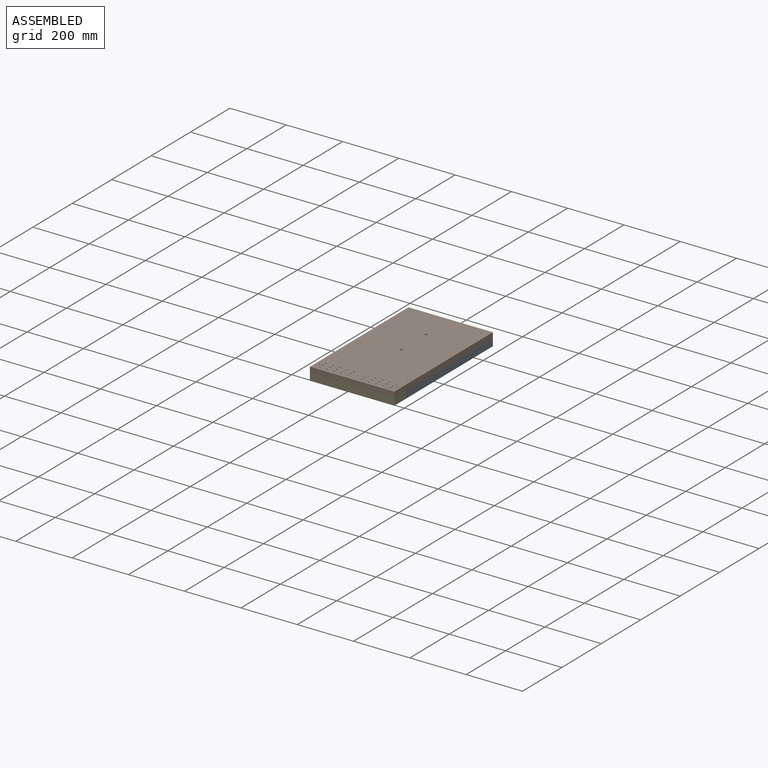
[diagram: assembled view]
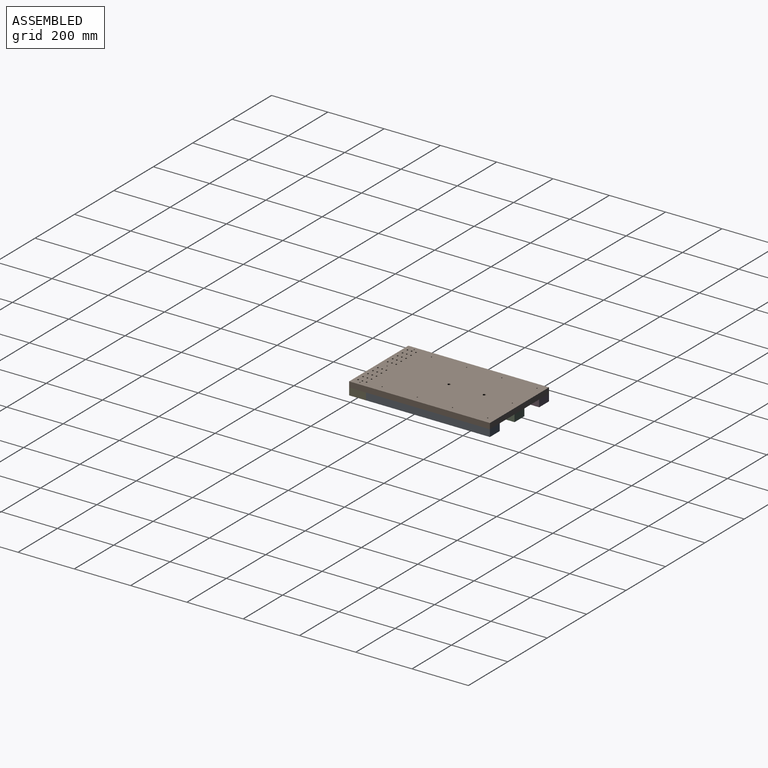
[diagram: assembled view, second angle]
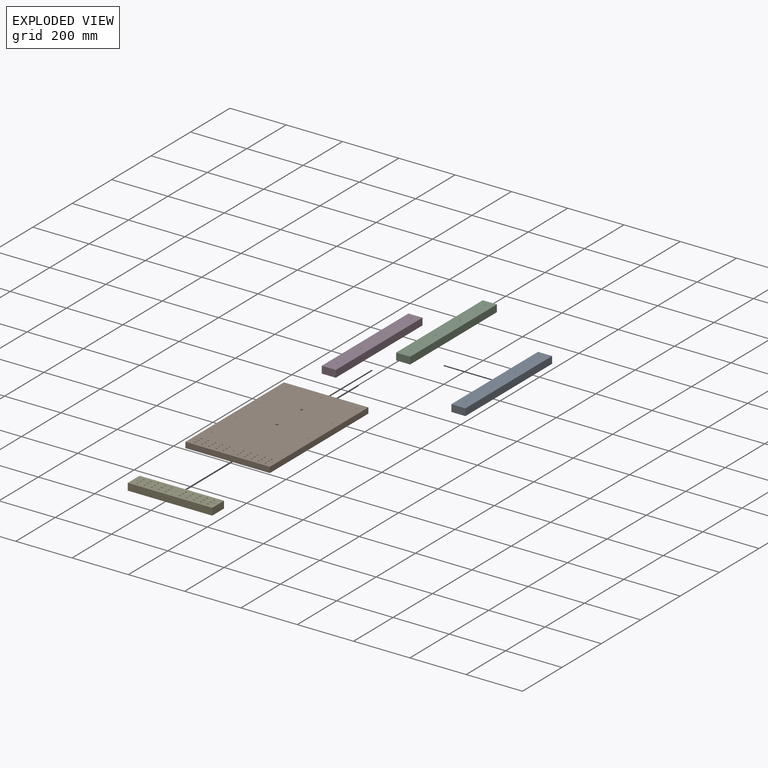
[diagram: exploded view]
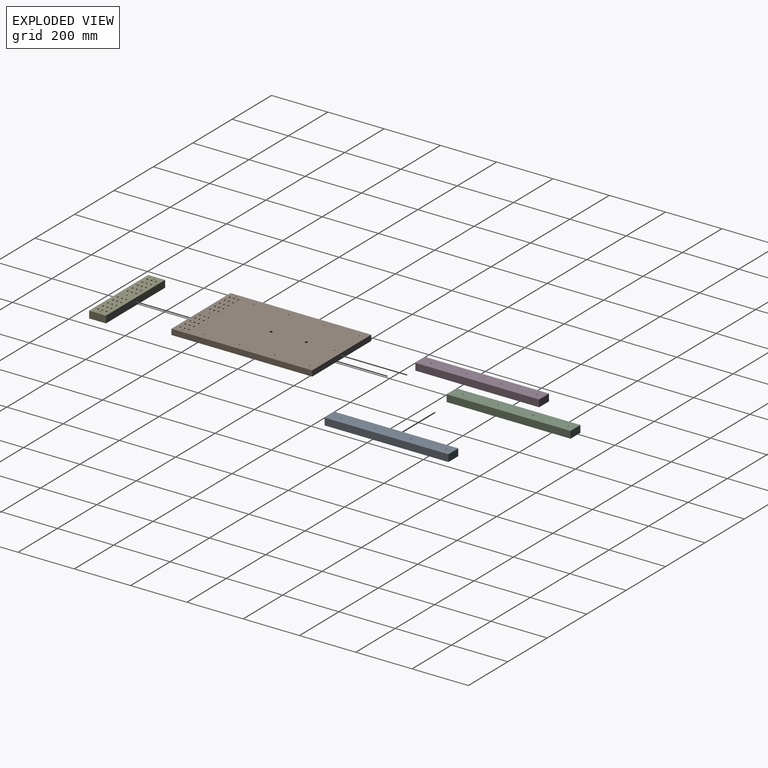
[diagram: exploded view, second angle]
ASSEMBLY  parts=5 mates=4
PART A: 10 faces, bbox 50x440x25 mm
  f0: plane 50x25mm, normal (0,1,0), area 1250mm2, adj f1,f7,f8,f9
  f1: plane 440x25mm, normal (-1,0,0), area 11000mm2, adj f0,f2,f8,f9
  f2: plane 50x25mm, normal (0,-1,0), area 1250mm2, adj f1,f7,f8,f9
  f3: cylinder r=2mm len=25mm, axis (0,0,-1), area 314.2mm2, adj f8,f9
  f4: cylinder r=2mm len=25mm, axis (0,0,-1), area 314.2mm2, adj f8,f9
  f5: cylinder r=2mm len=25mm, axis (0,0,-1), area 314.2mm2, adj f8,f9
  f6: cylinder r=2mm len=25mm, axis (0,0,-1), area 314.2mm2, adj f8,f9
  f7: plane 440x25mm, normal (1,0,0), area 11000mm2, adj f0,f2,f8,f9
  f8: plane 440x50mm, normal (0,0,1), area 21949.7mm2, adj f0,f1,f2,f3,f4,f5,f6,f7
  f9: plane 440x50mm, normal (0,0,-1), area 21949.7mm2, adj f0,f1,f2,f3,f4,f5,f6,f7
PART B: 50 faces, bbox 300x500x20 mm
  f0: plane 300x20mm, normal (0,1,0), area 6000mm2, adj f1,f47,f48,f49
  f1: plane 500x20mm, normal (-1,0,0), area 10000mm2, adj f0,f2,f48,f49
  f2: plane 300x20mm, normal (0,-1,0), area 6000mm2, adj f1,f47,f48,f49
  f3: cylinder r=3mm len=20mm, axis (0,0,-1), area 377mm2, adj f48,f49
  f4: cylinder r=3mm len=20mm, axis (0,0,-1), area 377mm2, adj f48,f49
  f5: cylinder r=3mm len=20mm, axis (0,0,-1), area 377mm2, adj f48,f49
  f6: cylinder r=3mm len=20mm, axis (0,0,-1), area 377mm2, adj f48,f49
  f7: cylinder r=3mm len=20mm, axis (0,0,-1), area 377mm2, adj f48,f49
  f8: cylinder r=3mm len=20mm, axis (0,0,-1), area 377mm2, adj f48,f49
  f9: cylinder r=3mm len=20mm, axis (0,0,-1), area 377mm2, adj f48,f49
  f10: cylinder r=3mm len=20mm, axis (0,0,-1), area 377mm2, adj f48,f49
  f11: cylinder r=3mm len=20mm, axis (0,0,-1), area 377mm2, adj f48,f49
  f12: cylinder r=3mm len=20mm, axis (0,0,-1), area 377mm2, adj f48,f49
  f13: cylinder r=3mm len=20mm, axis (0,0,-1), area 377mm2, adj f48,f49
  f14: cylinder r=3mm len=20mm, axis (0,0,-1), area 377mm2, adj f48,f49
  f15: cylinder r=3mm len=20mm, axis (0,0,-1), area 377mm2, adj f48,f49
  f16: cylinder r=3mm len=20mm, axis (0,0,-1), area 377mm2, adj f48,f49
  f17: cylinder r=3mm len=20mm, axis (0,0,-1), area 377mm2, adj f48,f49
  f18: cylinder r=3mm len=20mm, axis (0,0,-1), area 377mm2, adj f48,f49
  f19: cylinder r=3mm len=20mm, axis (0,0,-1), area 377mm2, adj f48,f49
  f20: cylinder r=3mm len=20mm, axis (0,0,-1), area 377mm2, adj f48,f49
  f21: cylinder r=3mm len=20mm, axis (0,0,-1), area 377mm2, adj f48,f49
  f22: cylinder r=3mm len=20mm, axis (0,0,-1), area 377mm2, adj f48,f49
  f23: cylinder r=3mm len=20mm, axis (0,0,-1), area 377mm2, adj f48,f49
  f24: cylinder r=3mm len=20mm, axis (0,0,-1), area 377mm2, adj f48,f49
  f25: cylinder r=3mm len=20mm, axis (0,0,-1), area 377mm2, adj f48,f49
  f26: cylinder r=3mm len=20mm, axis (0,0,-1), area 377mm2, adj f48,f49
  f27: cylinder r=3mm len=20mm, axis (0,0,-1), area 377mm2, adj f48,f49
  f28: cylinder r=3mm len=20mm, axis (0,0,-1), area 377mm2, adj f48,f49
  f29: cylinder r=3mm len=20mm, axis (0,0,-1), area 377mm2, adj f48,f49
  f30: cylinder r=3mm len=20mm, axis (0,0,-1), area 377mm2, adj f48,f49
  f31: cylinder r=3mm len=20mm, axis (0,0,-1), area 377mm2, adj f48,f49
  f32: cylinder r=3mm len=20mm, axis (0,0,-1), area 377mm2, adj f48,f49
  f33: cylinder r=5mm len=20mm, axis (0,0,-1), area 628.3mm2, adj f48,f49
  f34: cylinder r=5mm len=20mm, axis (0,0,-1), area 628.3mm2, adj f48,f49
  f35: cylinder r=2mm len=20mm, axis (0,0,-1), area 251.3mm2, adj f48,f49
  f36: cylinder r=2mm len=20mm, axis (0,0,-1), area 251.3mm2, adj f48,f49
  f37: cylinder r=2mm len=20mm, axis (0,0,-1), area 251.3mm2, adj f48,f49
  f38: cylinder r=2mm len=20mm, axis (0,0,-1), area 251.3mm2, adj f48,f49
  f39: cylinder r=2mm len=20mm, axis (0,0,-1), area 251.3mm2, adj f48,f49
  f40: cylinder r=2mm len=20mm, axis (0,0,-1), area 251.3mm2, adj f48,f49
  f41: cylinder r=2mm len=20mm, axis (0,0,-1), area 251.3mm2, adj f48,f49
  f42: cylinder r=2mm len=20mm, axis (0,0,-1), area 251.3mm2, adj f48,f49
  f43: cylinder r=2mm len=20mm, axis (0,0,-1), area 251.3mm2, adj f48,f49
  f44: cylinder r=2mm len=20mm, axis (0,0,-1), area 251.3mm2, adj f48,f49
  f45: cylinder r=2mm len=20mm, axis (0,0,-1), area 251.3mm2, adj f48,f49
  f46: cylinder r=2mm len=20mm, axis (0,0,-1), area 251.3mm2, adj f48,f49
  f47: plane 500x20mm, normal (1,0,0), area 10000mm2, adj f0,f2,f48,f49
  f48: plane 500x300mm, normal (0,0,1), area 148843.9mm2, adj f0,f1,f2,f3,f4,f5,f6,f7
  f49: plane 500x300mm, normal (0,0,-1), area 148843.9mm2, adj f0,f1,f2,f3,f4,f5,f6,f7
PART C: same geometry as A
PART D: same geometry as A
PART E: 39 faces, bbox 300x60x25 mm
  f0: plane 300x25mm, normal (0,1,0), area 7500mm2, adj f1,f36,f37,f38
  f1: plane 60x25mm, normal (-1,0,0), area 1500mm2, adj f0,f2,f37,f38
  f2: plane 300x25mm, normal (0,-1,0), area 7500mm2, adj f1,f36,f37,f38
  f3: cylinder r=3mm len=25mm, axis (0,0,-1), area 471.2mm2, adj f37,f38
  f4: cylinder r=3mm len=25mm, axis (0,0,-1), area 471.2mm2, adj f37,f38
  f5: cylinder r=3mm len=25mm, axis (0,0,-1), area 471.2mm2, adj f37,f38
  f6: cylinder r=3mm len=25mm, axis (0,0,-1), area 471.2mm2, adj f37,f38
  f7: cylinder r=3mm len=25mm, axis (0,0,-1), area 471.2mm2, adj f37,f38
  f8: cylinder r=3mm len=25mm, axis (0,0,-1), area 471.2mm2, adj f37,f38
  f9: cylinder r=3mm len=25mm, axis (0,0,-1), area 471.2mm2, adj f37,f38
  f10: cylinder r=3mm len=25mm, axis (0,0,-1), area 471.2mm2, adj f37,f38
  f11: cylinder r=3mm len=25mm, axis (0,0,-1), area 471.2mm2, adj f37,f38
  f12: cylinder r=3mm len=25mm, axis (0,0,-1), area 471.2mm2, adj f37,f38
  f13: cylinder r=3mm len=25mm, axis (0,0,-1), area 471.2mm2, adj f37,f38
  f14: cylinder r=3mm len=25mm, axis (0,0,-1), area 471.2mm2, adj f37,f38
  f15: cylinder r=3mm len=25mm, axis (0,0,-1), area 471.2mm2, adj f37,f38
  f16: cylinder r=3mm len=25mm, axis (0,0,-1), area 471.2mm2, adj f37,f38
  f17: cylinder r=3mm len=25mm, axis (0,0,-1), area 471.2mm2, adj f37,f38
  f18: cylinder r=3mm len=25mm, axis (0,0,-1), area 471.2mm2, adj f37,f38
  f19: cylinder r=3mm len=25mm, axis (0,0,-1), area 471.2mm2, adj f37,f38
  f20: cylinder r=3mm len=25mm, axis (0,0,-1), area 471.2mm2, adj f37,f38
  f21: cylinder r=3mm len=25mm, axis (0,0,-1), area 471.2mm2, adj f37,f38
  f22: cylinder r=3mm len=25mm, axis (0,0,-1), area 471.2mm2, adj f37,f38
  f23: cylinder r=3mm len=25mm, axis (0,0,-1), area 471.2mm2, adj f37,f38
  f24: cylinder r=3mm len=25mm, axis (0,0,-1), area 471.2mm2, adj f37,f38
  f25: cylinder r=3mm len=25mm, axis (0,0,-1), area 471.2mm2, adj f37,f38
  f26: cylinder r=3mm len=25mm, axis (0,0,-1), area 471.2mm2, adj f37,f38
  f27: cylinder r=3mm len=25mm, axis (0,0,-1), area 471.2mm2, adj f37,f38
  f28: cylinder r=3mm len=25mm, axis (0,0,-1), area 471.2mm2, adj f37,f38
  f29: cylinder r=3mm len=25mm, axis (0,0,-1), area 471.2mm2, adj f37,f38
  f30: cylinder r=3mm len=25mm, axis (0,0,-1), area 471.2mm2, adj f37,f38
  f31: cylinder r=3mm len=25mm, axis (0,0,-1), area 471.2mm2, adj f37,f38
  f32: cylinder r=3mm len=25mm, axis (0,0,-1), area 471.2mm2, adj f37,f38
  f33: cylinder r=2mm len=25mm, axis (0,0,-1), area 314.2mm2, adj f37,f38
  f34: cylinder r=2mm len=25mm, axis (0,0,-1), area 314.2mm2, adj f37,f38
  f35: cylinder r=2mm len=25mm, axis (0,0,-1), area 314.2mm2, adj f37,f38
  f36: plane 60x25mm, normal (1,0,0), area 1500mm2, adj f0,f2,f37,f38
  f37: plane 300x60mm, normal (0,0,1), area 17114.1mm2, adj f0,f1,f2,f3,f4,f5,f6,f7
  f38: plane 300x60mm, normal (0,0,-1), area 17114.1mm2, adj f0,f1,f2,f3,f4,f5,f6,f7
PLACE A t=(-47.07,60.87,-147.18)mm
PLACE B t=(-172.07,30.87,-122.18)mm
PLACE C t=(-172.07,60.87,-147.18)mm
PLACE D t=(-297.07,60.87,-147.18)mm
PLACE E t=(-172.07,-189.13,-147.18)mm
MATE fastened C.f0 <-> B.f0  axis (0,1,0) through (-172.07,280.87,-122.18)mm
MATE fastened B.f2 <-> E.f2  axis (0,-1,0) through (-172.07,-219.13,-122.18)mm
MATE fastened A.f7 <-> E.f36  axis (1,0,0) through (-22.07,-159.13,-134.68)mm
MATE fastened D.f1 <-> E.f1  axis (-1,0,0) through (-322.07,-159.13,-134.68)mm
